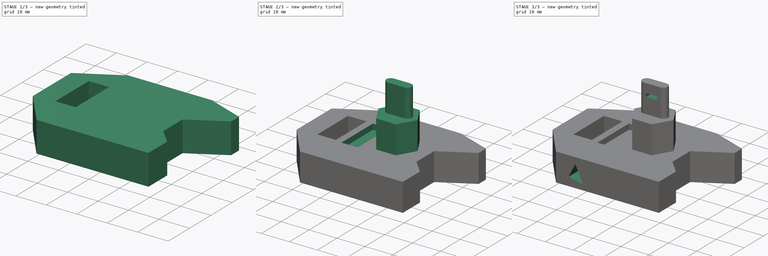
[diagram: build sequence overview — one tinted view per stage of 3, left to right]
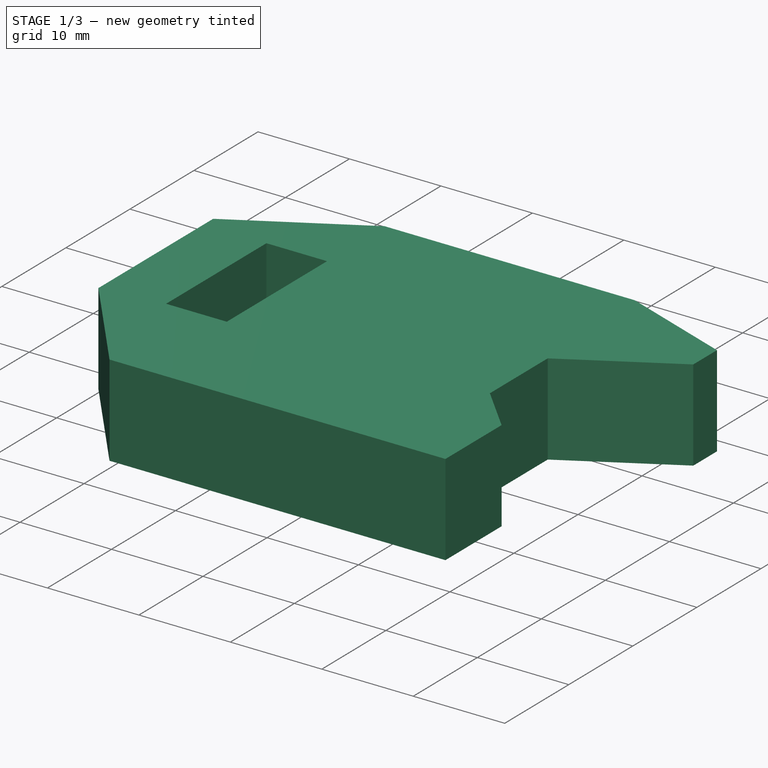
[diagram: stage 1 of 3 — iso view after this stage's code; geometry added in this stage tinted green]
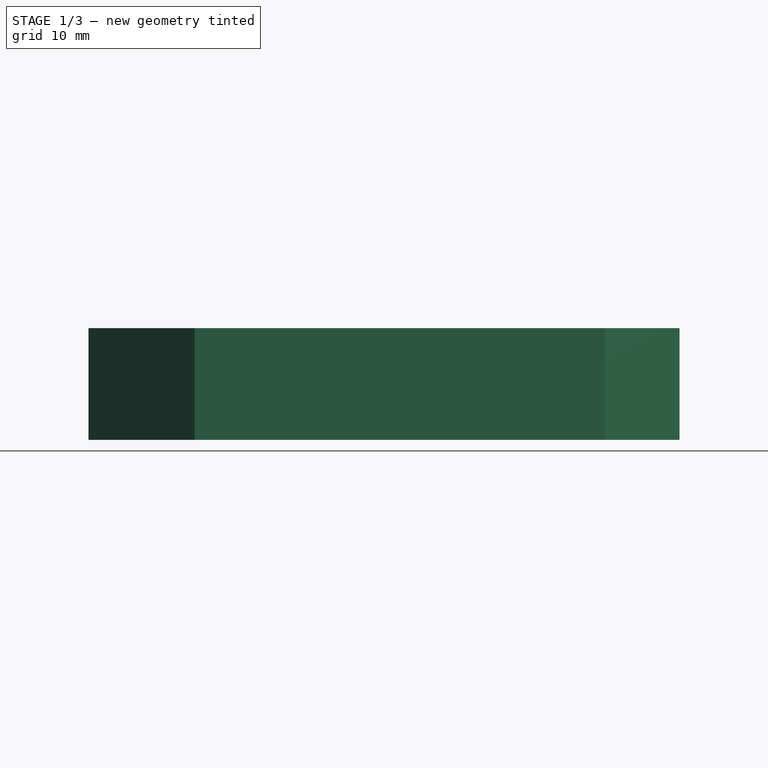
[diagram: stage 1 of 3 — front view after this stage's code; geometry added in this stage tinted green]
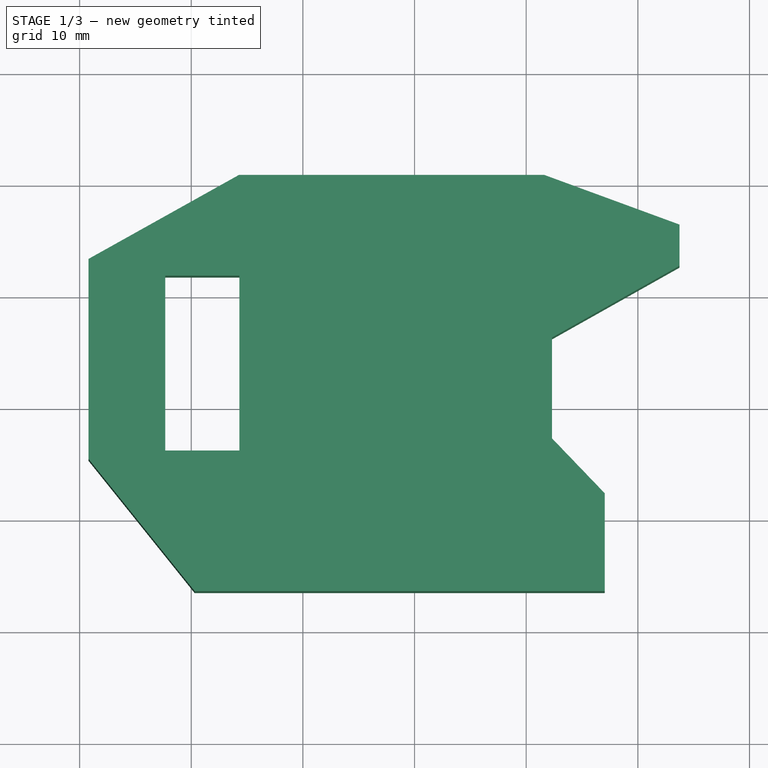
[diagram: stage 1 of 3 — top view after this stage's code; geometry added in this stage tinted green]
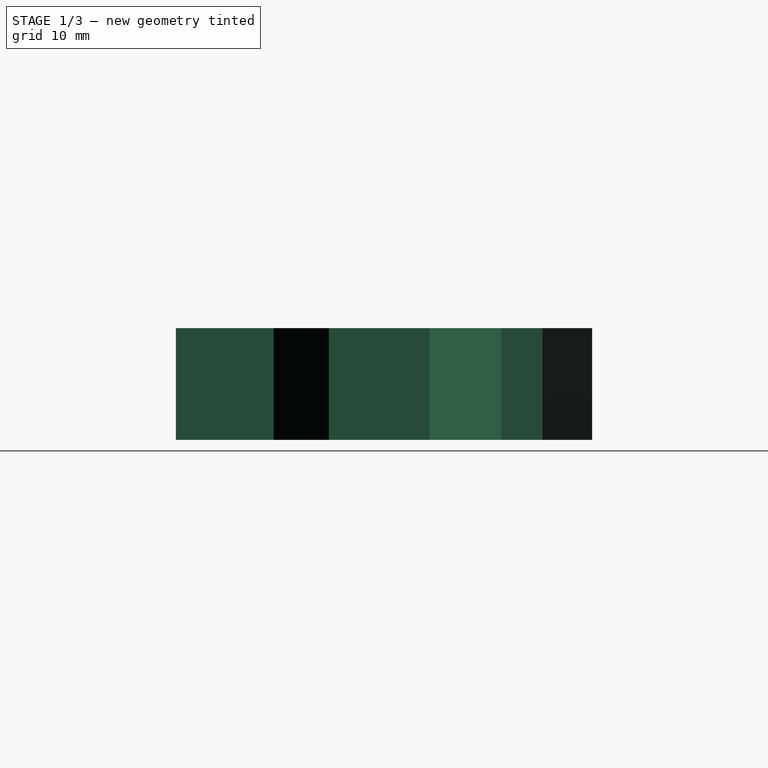
[diagram: stage 1 of 3 — right view after this stage's code; geometry added in this stage tinted green]
FCSTD DOCUMENT  (FreeCAD 0.16R6707 (Git))
Label: 01-diseno-libre-1
License: All rights reserved
LicenseURL: http://en.wikipedia.org/wiki/All_rights_reserved
objects: Sketcher::SketchObject×7, PartDesign::Pocket×4, PartDesign::Pad×3
note: 21 computed .brp shape members not serialized (recipe doc carries the construction recipe); baked Part::Feature solids carry a one-line shape summary decoded from their .brp

FEATURE [Sketcher::SketchObject] Sketch
  sketch-geometry (11):
    g0: LineSegment StartX=-15.7287 StartY=20.8234 StartZ=0 EndX=11.6256 EndY=20.8234 EndZ=0
    g1: LineSegment StartX=11.6256 StartY=20.8234 StartZ=0 EndX=23.7298 EndY=16.3784 EndZ=0
    g2: LineSegment StartX=23.7298 StartY=16.3784 StartZ=0 EndX=23.7298 EndY=12.6855 EndZ=0
    g3: LineSegment StartX=23.7298 StartY=12.6855 StartZ=0 EndX=12.3094 EndY=6.25729 EndZ=0
    g4: LineSegment StartX=12.3094 StartY=6.25729 StartZ=0 EndX=12.3094 EndY=-2.76962 EndZ=0
    g5: LineSegment StartX=12.3094 StartY=-2.76962 StartZ=0 EndX=17.0365 EndY=-7.69339 EndZ=0
    g6: LineSegment StartX=17.0365 StartY=-7.69339 StartZ=0 EndX=17.0365 EndY=-16.4602 EndZ=0
    g7: LineSegment StartX=17.0365 StartY=-16.4602 StartZ=0 EndX=-19.6951 EndY=-16.4602 EndZ=0
    g8: LineSegment StartX=-19.6951 StartY=-16.4602 StartZ=0 EndX=-29.2007 EndY=-4.61604 EndZ=0
    g9: LineSegment StartX=-29.2007 StartY=-4.61604 StartZ=0 EndX=-29.2007 EndY=13.301 EndZ=0
    g10: LineSegment StartX=-29.2007 StartY=13.301 StartZ=0 EndX=-15.7287 EndY=20.8234 EndZ=0
  constraints (17):
    c: Horizontal(g0)
    c: Coincident(g0,g1)
    c: Coincident(g1,g2)
    c: Vertical(g2)
    c: Coincident(g2,g3)
    c: Coincident(g3,g4)
    c: Vertical(g4)
    c: Coincident(g4,g5)
    c: Coincident(g5,g6)
    c: Vertical(g6)
    c: Coincident(g6,g7)
    c: Horizontal(g7)
    c: Coincident(g7,g8)
    c: Coincident(g8,g9)
    c: Vertical(g9)
    c: Coincident(g9,g10)
    c: Coincident(g10,g0)
FEATURE [PartDesign::Pad] Pad
  Length = 10
  Length2 = 100
  Sketch = -> Sketch
  Type = 0
FEATURE [Sketcher::SketchObject] Sketch001
  Placement = pos=(0,0,10) rot=(0,0,1;0rad)
  Support = -> Pad [Face13]
  sketch-geometry (4):
    g0: LineSegment StartX=-22.3253 StartY=11.7971 StartZ=0 EndX=-15.6919 EndY=11.7971 EndZ=0
    g1: LineSegment StartX=-15.6919 StartY=11.7971 StartZ=0 EndX=-15.6919 EndY=-3.86324 EndZ=0
    g2: LineSegment StartX=-15.6919 StartY=-3.86324 StartZ=0 EndX=-22.3253 EndY=-3.86324 EndZ=0
    g3: LineSegment StartX=-22.3253 StartY=-3.86324 StartZ=0 EndX=-22.3253 EndY=11.7971 EndZ=0
  constraints (8):
    c: Coincident(g0,g1)
    c: Coincident(g1,g2)
    c: Coincident(g2,g3)
    c: Coincident(g3,g0)
    c: Horizontal(g0)
    c: Horizontal(g2)
    c: Vertical(g1)
    c: Vertical(g3)
FEATURE [PartDesign::Pocket] Pocket
  Length = 5
  Sketch = -> Sketch001
  Type = 1
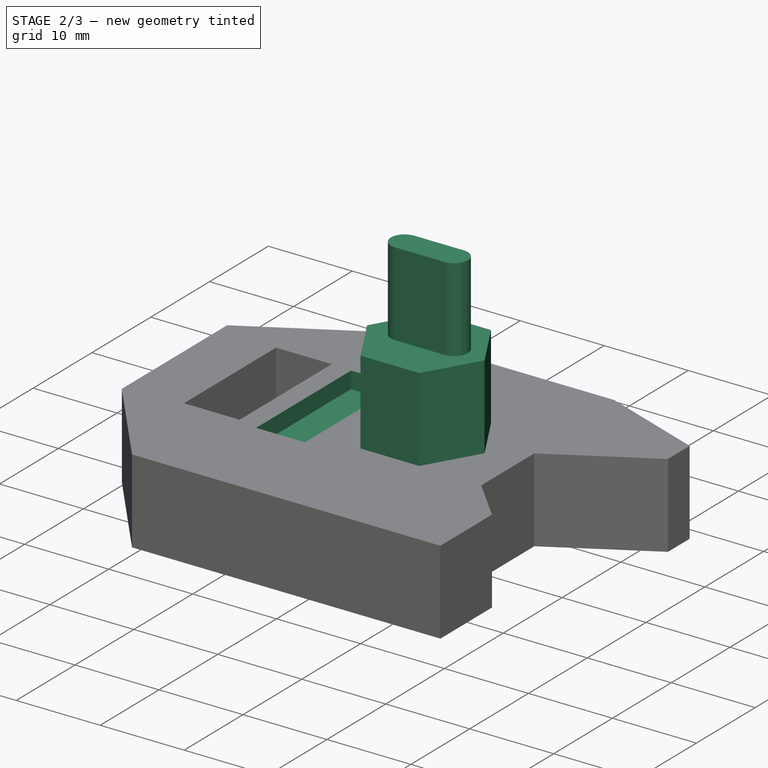
[diagram: stage 2 of 3 — iso view after this stage's code; geometry added in this stage tinted green]
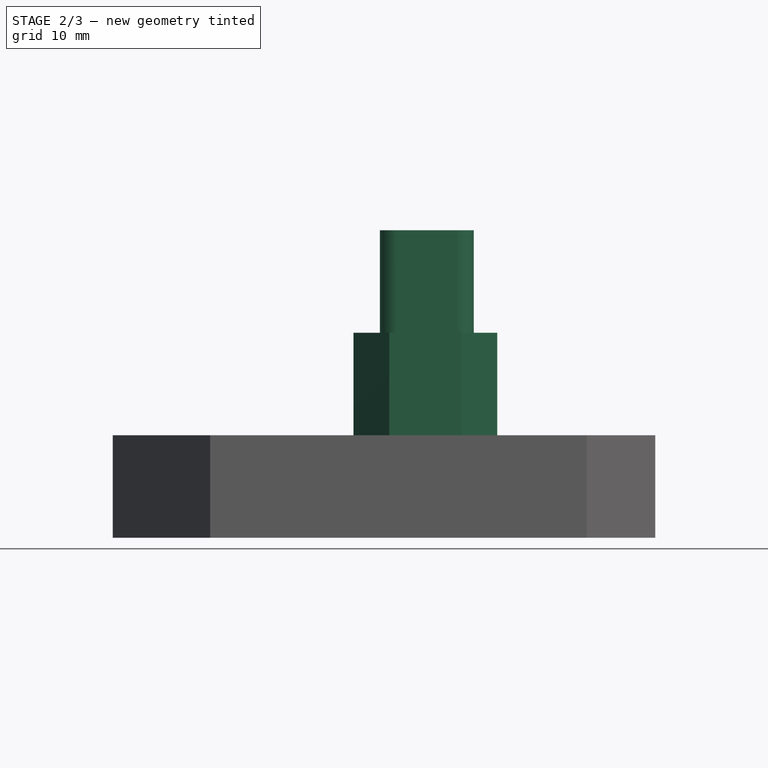
[diagram: stage 2 of 3 — front view after this stage's code; geometry added in this stage tinted green]
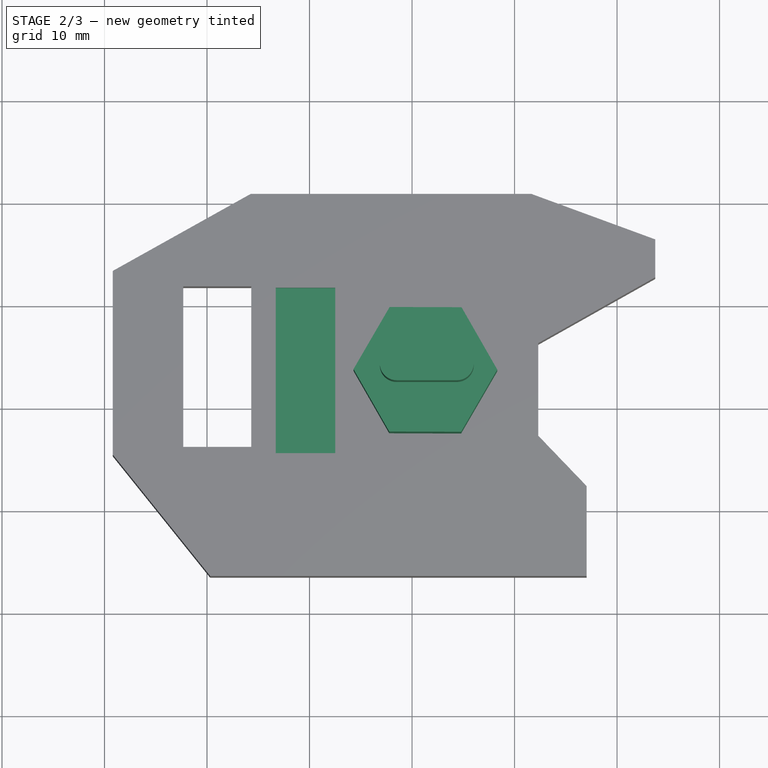
[diagram: stage 2 of 3 — top view after this stage's code; geometry added in this stage tinted green]
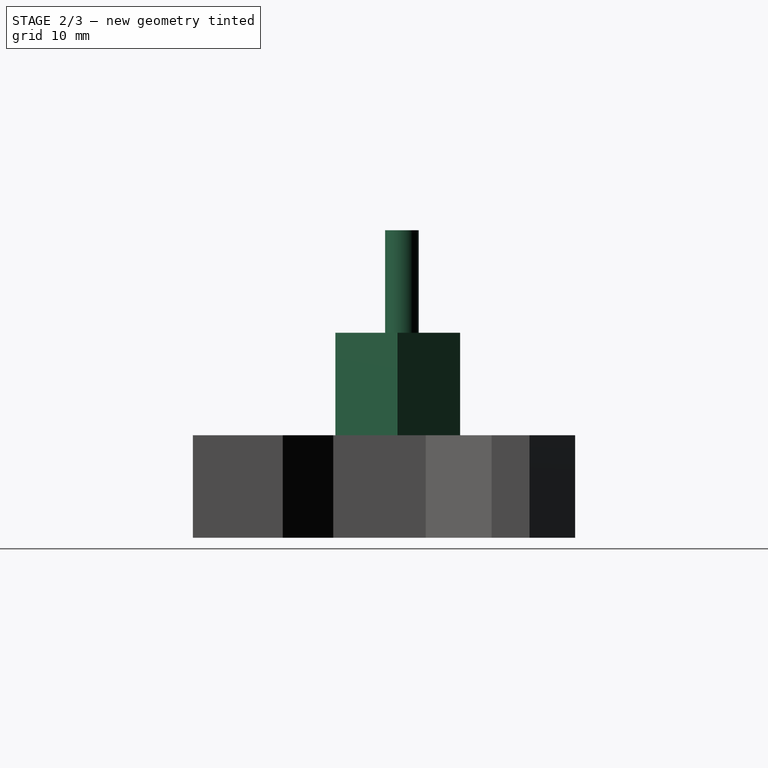
[diagram: stage 2 of 3 — right view after this stage's code; geometry added in this stage tinted green]
FEATURE [Sketcher::SketchObject] Sketch002
  Placement = pos=(0,0,10) rot=(0,0,1;0rad)
  Support = -> Pocket [Face5]
  sketch-geometry (4):
    g0: LineSegment StartX=-13.2984 StartY=11.6603 StartZ=0 EndX=-7.48563 EndY=11.6603 EndZ=0
    g1: LineSegment StartX=-7.48563 StartY=11.6603 StartZ=0 EndX=-7.48563 EndY=-4.47871 EndZ=0
    g2: LineSegment StartX=-7.48563 StartY=-4.47871 StartZ=0 EndX=-13.2984 EndY=-4.47871 EndZ=0
    g3: LineSegment StartX=-13.2984 StartY=-4.47871 StartZ=0 EndX=-13.2984 EndY=11.6603 EndZ=0
  constraints (8):
    c: Coincident(g0,g1)
    c: Coincident(g1,g2)
    c: Coincident(g2,g3)
    c: Coincident(g3,g0)
    c: Horizontal(g0)
    c: Horizontal(g2)
    c: Vertical(g1)
    c: Vertical(g3)
FEATURE [PartDesign::Pocket] Pocket001
  Length = 2
  Sketch = -> Sketch002
  Type = 0
FEATURE [Sketcher::SketchObject] Sketch003
  Placement = pos=(0,0,10) rot=(0,0,1;0rad)
  Support = -> Pocket001 [Face5]
  sketch-geometry (7):
    g0: LineSegment StartX=4.7896 StartY=-2.56391 StartZ=0 EndX=8.31668 EndY=3.49967 EndZ=0
    g1: LineSegment StartX=8.31668 StartY=3.49967 StartZ=0 EndX=4.82901 EndY=9.586 EndZ=0
    g2: LineSegment StartX=4.82901 StartY=9.586 StartZ=0 EndX=-2.18575 EndY=9.60875 EndZ=0
    g3: LineSegment StartX=-2.18575 StartY=9.60875 StartZ=0 EndX=-5.71283 EndY=3.54517 EndZ=0
    g4: LineSegment StartX=-5.71283 StartY=3.54517 StartZ=0 EndX=-2.22515 EndY=-2.54116 EndZ=0
    g5: LineSegment StartX=-2.22515 StartY=-2.54116 StartZ=0 EndX=4.7896 EndY=-2.56391 EndZ=0
    g6: Circle [constr] CenterX=1.30193 CenterY=3.52242 CenterZ=0 NormalX=0 NormalY=0 NormalZ=1 Radius=7.01479
  constraints (13):
    c: Coincident(g0,g1)
    c: Coincident(g1,g2)
    c: Coincident(g2,g3)
    c: Coincident(g3,g4)
    c: Coincident(g4,g5)
    c: Coincident(g5,g0)
    c: Equal(g0, g1-g5) x5
    c: PointOnObject(g0,g6)
    c: PointOnObject(g1,g6)
    c: PointOnObject(g2,g6)
    c: PointOnObject(g3,g6)
    c: PointOnObject(g4,g6)
    c: PointOnObject(g5,g6)
FEATURE [PartDesign::Pad] Pad001
  Length = 10
  Length2 = 100
  Sketch = -> Sketch003
  Type = 0
FEATURE [Sketcher::SketchObject] Sketch004
  Placement = pos=(0,0,20) rot=(0,0,1;0rad)
  Support = -> Pad001 [Face29]
  sketch-geometry (4):
    g0: ArcOfCircle CenterX=-1.50189 CenterY=3.93273 CenterZ=0 NormalX=0 NormalY=0 NormalZ=1 Radius=1.64126 StartAngle=1.5708 EndAngle=4.71239
    g1: ArcOfCircle CenterX=4.37929 CenterY=3.93273 CenterZ=0 NormalX=0 NormalY=0 NormalZ=1 Radius=1.64126 StartAngle=4.71239 EndAngle=7.85398
    g2: LineSegment StartX=-1.50189 StartY=2.29147 StartZ=0 EndX=4.37929 EndY=2.29147 EndZ=0
    g3: LineSegment StartX=-1.50189 StartY=5.57399 StartZ=0 EndX=4.37929 EndY=5.57399 EndZ=0
  constraints (6):
    c: Tangent(g0,g3) = 1.5708
    c: Tangent(g0,g2) = -1.5708
    c: Tangent(g2,g1) = -1.5708
    c: Tangent(g3,g1) = 1.5708
    c: Horizontal(g2)
    c: Equal(g0,g1)
FEATURE [PartDesign::Pad] Pad002
  Length = 10
  Length2 = 100
  Sketch = -> Sketch004
  Type = 0
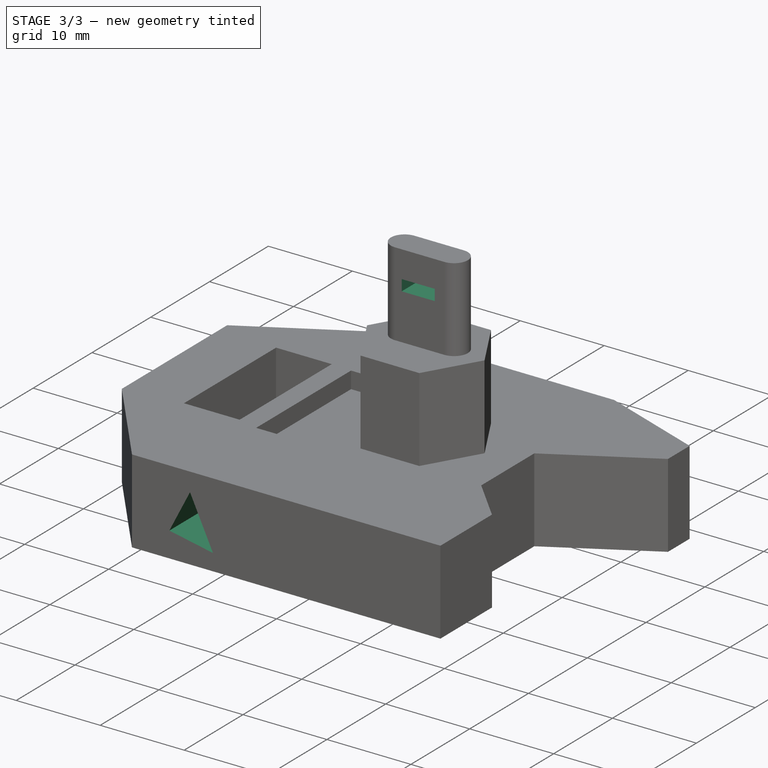
[diagram: stage 3 of 3 — iso view after this stage's code; geometry added in this stage tinted green]
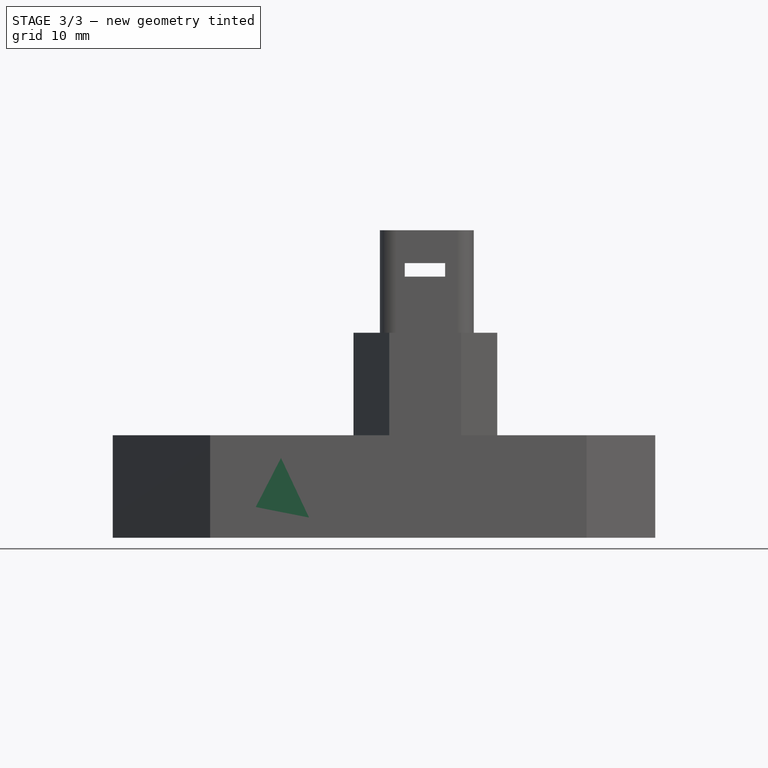
[diagram: stage 3 of 3 — front view after this stage's code; geometry added in this stage tinted green]
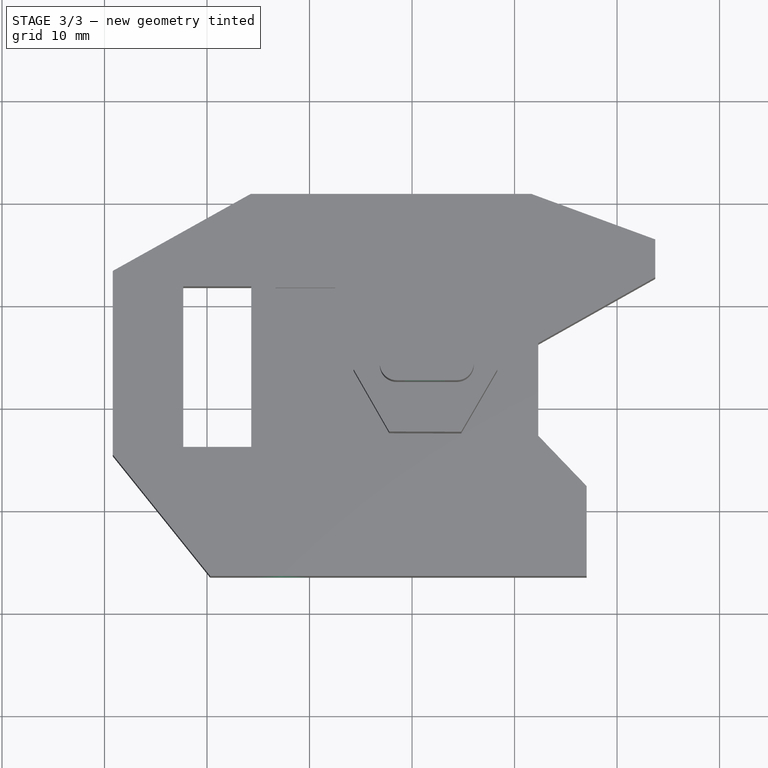
[diagram: stage 3 of 3 — top view after this stage's code; geometry added in this stage tinted green]
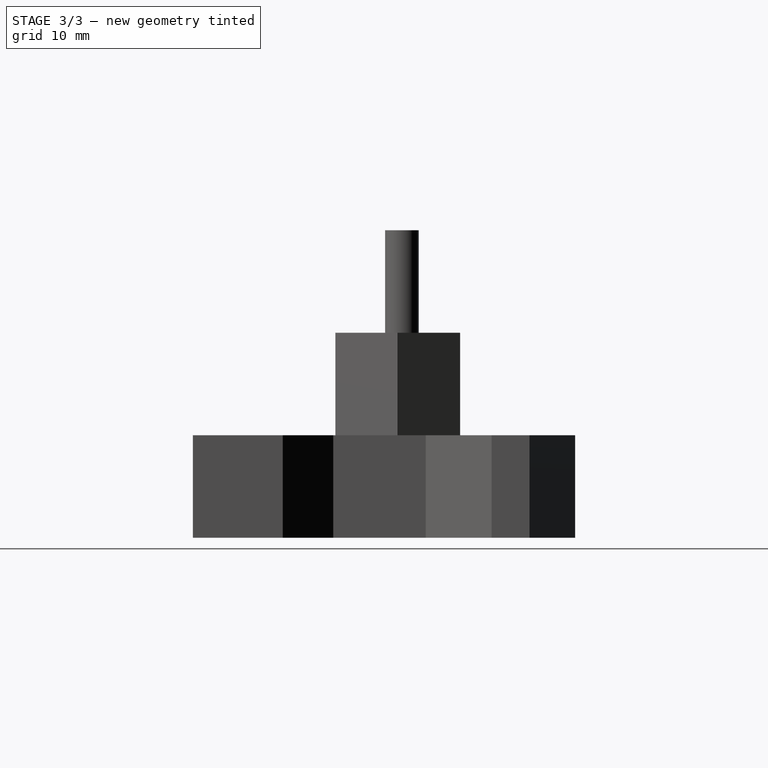
[diagram: stage 3 of 3 — right view after this stage's code; geometry added in this stage tinted green]
FEATURE [Sketcher::SketchObject] Sketch005
  Placement = pos=(0,-16.4602,0) rot=(1,0,0;1.5708rad)
  Support = -> Pad002 [Face10]
  sketch-geometry (3):
    g0: LineSegment StartX=-15.2474 StartY=2.99801 StartZ=0 EndX=-12.7855 EndY=7.78501 EndZ=0
    g1: LineSegment StartX=-12.7855 StartY=7.78501 StartZ=0 EndX=-10.0501 EndY=1.97222 EndZ=0
    g2: LineSegment StartX=-10.0501 StartY=1.97222 StartZ=0 EndX=-15.2474 EndY=2.99801 EndZ=0
  constraints (3):
    c: Coincident(g0,g1)
    c: Coincident(g1,g2)
    c: Coincident(g2,g0)
FEATURE [PartDesign::Pocket] Pocket002
  Length = 5
  Sketch = -> Sketch005
  Type = 0
FEATURE [Sketcher::SketchObject] Sketch006
  Placement = pos=(0,2.29147,0) rot=(1,0,0;1.5708rad)
  Support = -> Pocket002 [Face37]
  sketch-geometry (4):
    g0: LineSegment StartX=-0.705172 StartY=26.7969 StartZ=0 EndX=3.22797 EndY=26.7969 EndZ=0
    g1: LineSegment StartX=3.22797 StartY=26.7969 StartZ=0 EndX=3.22797 EndY=25.4756 EndZ=0
    g2: LineSegment StartX=3.22797 StartY=25.4756 StartZ=0 EndX=-0.705172 EndY=25.4756 EndZ=0
    g3: LineSegment StartX=-0.705172 StartY=25.4756 StartZ=0 EndX=-0.705172 EndY=26.7969 EndZ=0
  constraints (8):
    c: Coincident(g0,g1)
    c: Coincident(g1,g2)
    c: Coincident(g2,g3)
    c: Coincident(g3,g0)
    c: Horizontal(g0)
    c: Horizontal(g2)
    c: Vertical(g1)
    c: Vertical(g3)
FEATURE [PartDesign::Pocket] Pocket003
  Length = 5
  Sketch = -> Sketch006
  Type = 1
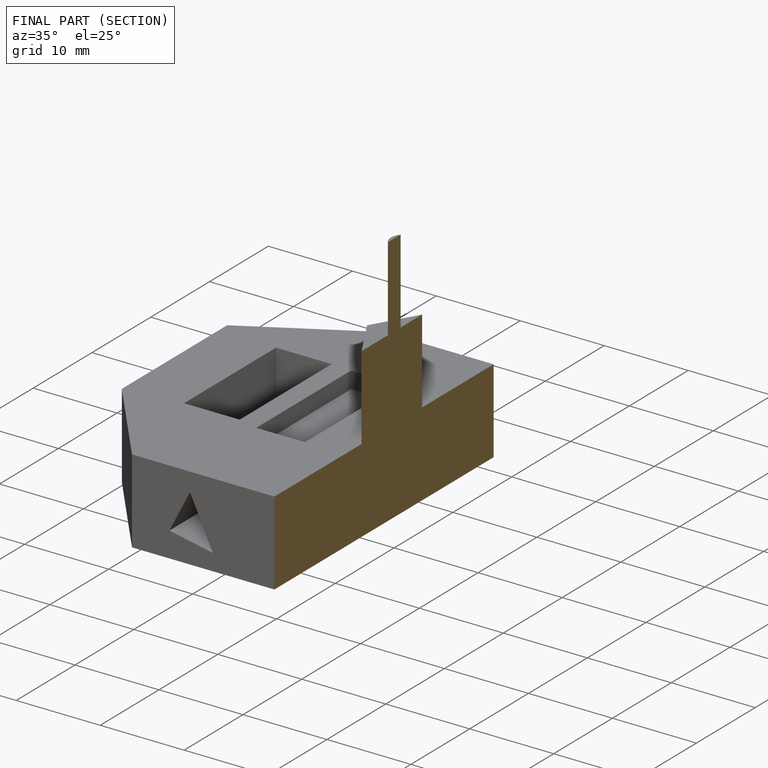
[diagram: finished part — half-section view (interior)]
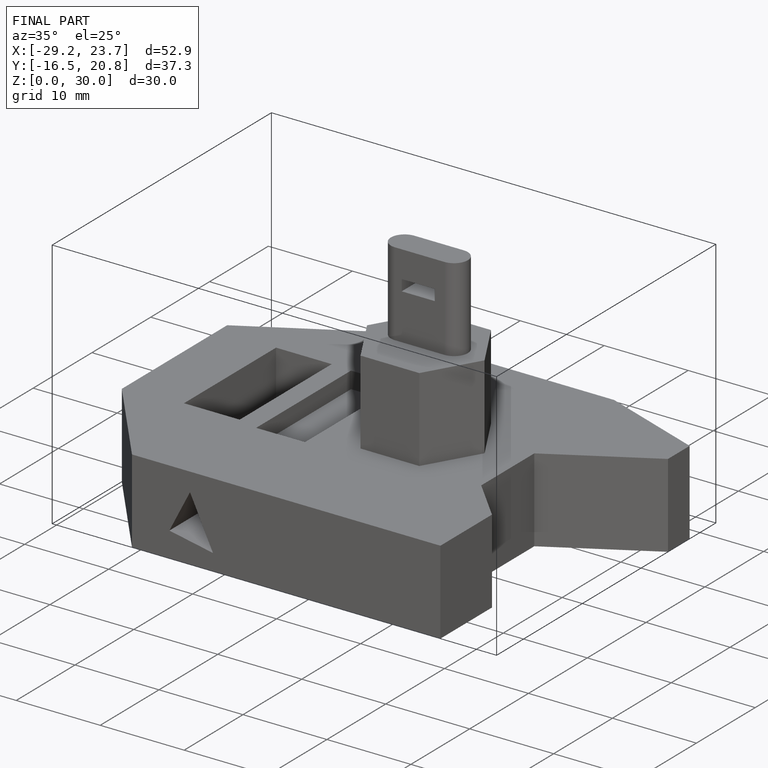
[diagram: finished part — iso view with bounding-box wireframe]
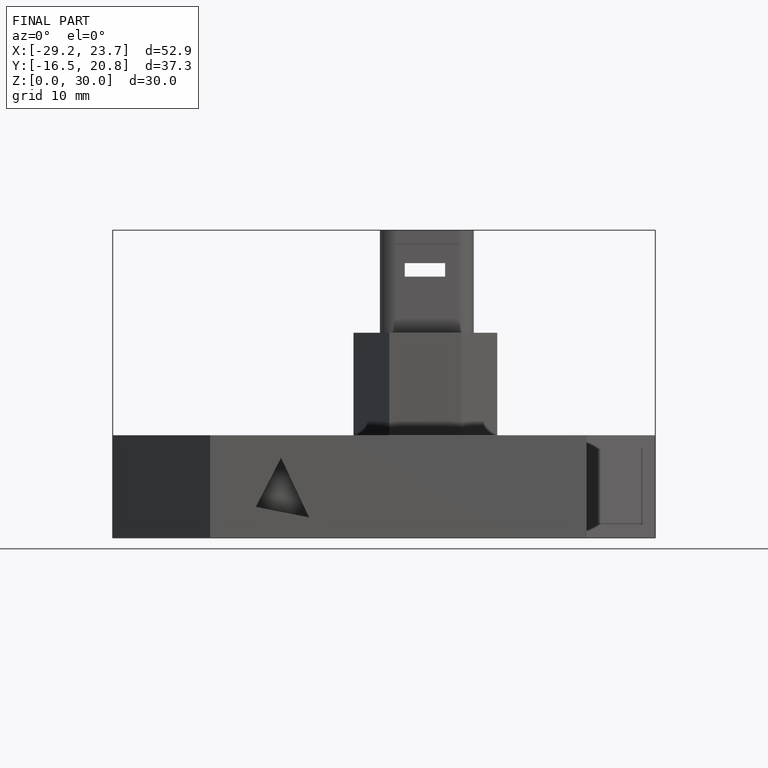
[diagram: finished part — front view with bounding-box wireframe]
